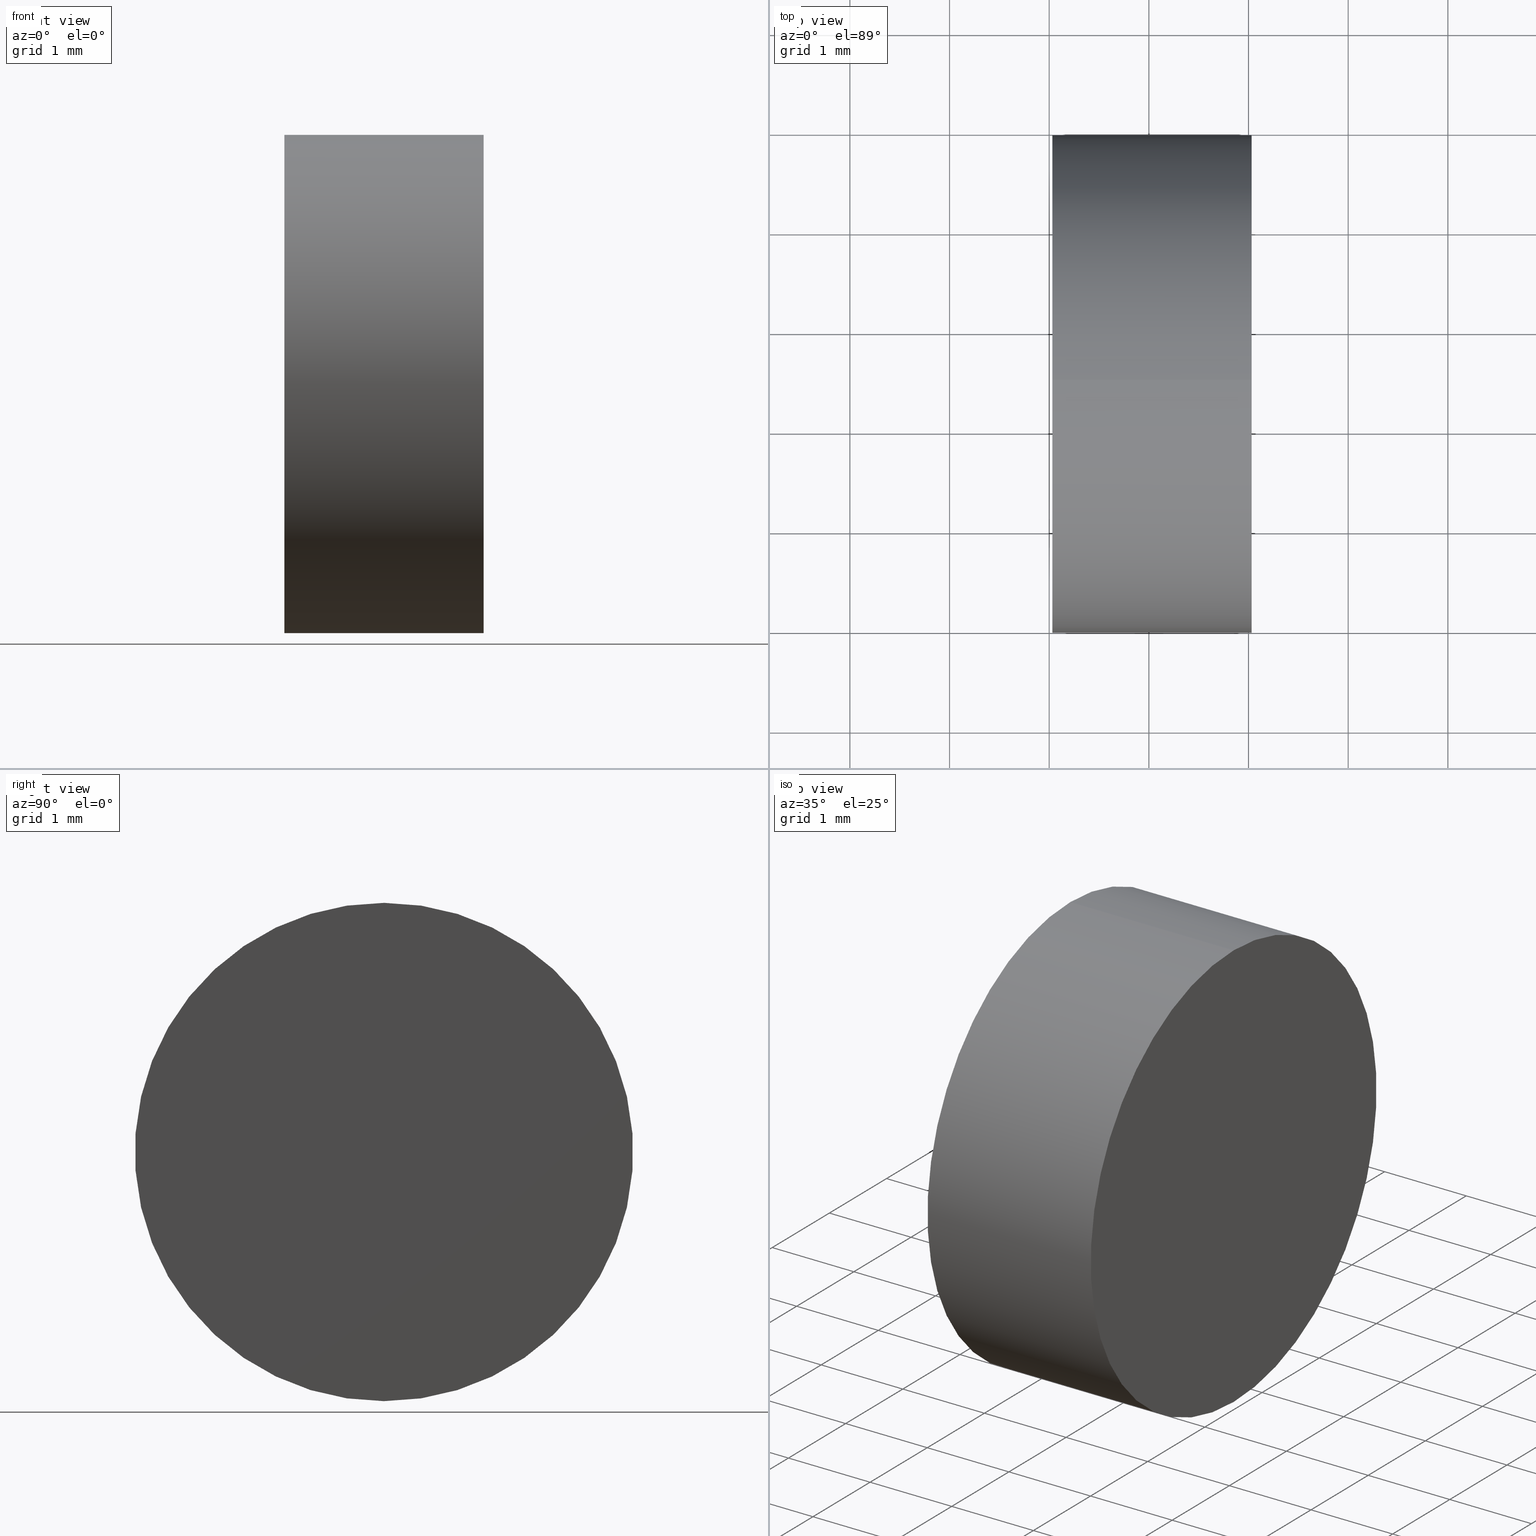
[diagram: canonical four-view strip — front | top / right | iso, engineering-drawing reading convention]
A machine part, canonical four-view strip (front | top / right | iso — engineering-drawing reading convention). The complete STEP part file that produces these views, byte-faithful:
ISO-10303-21;
HEADER;
FILE_DESCRIPTION (( 'STEP AP214' ),
    '1' );
FILE_NAME ('260000.STEP',
    '2019-07-15T02:36:57',
    ( '' ),
    ( '' ),
    'SwSTEP 2.0',
    'SolidWorks 2016',
    '' );
FILE_SCHEMA (( 'AUTOMOTIVE_DESIGN' ));
ENDSEC;

DATA;
#1 = FILL_AREA_STYLE_COLOUR ( '', #108 ) ;
#2 =( NAMED_UNIT ( * ) SI_UNIT ( $, .STERADIAN. ) SOLID_ANGLE_UNIT ( ) );
#3 = PRESENTATION_STYLE_ASSIGNMENT (( #35 ) ) ;
#4 = APPLICATION_CONTEXT ( 'automotive_design' ) ;
#5 = DIRECTION ( 'NONE',  ( -1.000000000000000000, -0.0000000000000000000, -0.0000000000000000000 ) ) ;
#6 = ADVANCED_FACE ( 'NONE', ( #42 ), #102, .T. ) ;
#7 = ORIENTED_EDGE ( 'NONE', *, *, #40, .T. ) ;
#8 = MECHANICAL_DESIGN_GEOMETRIC_PRESENTATION_REPRESENTATION (  '', ( #28 ), #38 ) ;
#9 = EDGE_LOOP ( 'NONE', ( #76, #65, #67, #57 ) ) ;
#10 = UNCERTAINTY_MEASURE_WITH_UNIT (LENGTH_MEASURE( 1.000000000000000100E-005 ), #110, 'distance_accuracy_value', 'NONE');
#11 = DIRECTION ( 'NONE',  ( 1.000000000000000000, 0.0000000000000000000, 0.0000000000000000000 ) ) ;
#12 = DIRECTION ( 'NONE',  ( -1.000000000000000000, -0.0000000000000000000, -0.0000000000000000000 ) ) ;
#13 = APPLICATION_PROTOCOL_DEFINITION ( 'draft international standard', 'automotive_design', 1998, #4 ) ;
#14 = ORIENTED_EDGE ( 'NONE', *, *, #116, .T. ) ;
#15 =( NAMED_UNIT ( * ) SI_UNIT ( $, .STERADIAN. ) SOLID_ANGLE_UNIT ( ) );
#16 = CARTESIAN_POINT ( 'NONE',  ( 52.03142809851220100, 15.45863586980308400, 0.0000000000000000000 ) ) ;
#17 = DIRECTION ( 'NONE',  ( -1.000000000000000000, -0.0000000000000000000, -0.0000000000000000000 ) ) ;
#18 = VECTOR ( 'NONE', #133, 1000.000000000000000 ) ;
#19 = DIRECTION ( 'NONE',  ( -1.000000000000000000, 0.0000000000000000000, -0.0000000000000000000 ) ) ;
#20 = CIRCLE ( 'NONE', #85, 2.499999999999996900 ) ;
#21 = ADVANCED_FACE ( 'NONE', ( #23 ), #72, .T. ) ;
#22 = CARTESIAN_POINT ( 'NONE',  ( 54.03142809851220800, 15.45863586980308400, 0.0000000000000000000 ) ) ;
#23 = FACE_OUTER_BOUND ( 'NONE', #9, .T. ) ;
#24 = DIRECTION ( 'NONE',  ( 0.0000000000000000000, 0.0000000000000000000, -1.000000000000000000 ) ) ;
#25 = VECTOR ( 'NONE', #5, 1000.000000000000000 ) ;
#26 = UNCERTAINTY_MEASURE_WITH_UNIT (LENGTH_MEASURE( 1.000000000000000100E-005 ), #131, 'distance_accuracy_value', 'NONE');
#27 = ORIENTED_EDGE ( 'NONE', *, *, #93, .F. ) ;
#28 = STYLED_ITEM ( 'NONE', ( #3 ), #59 ) ;
#29 = DIRECTION ( 'NONE',  ( -1.000000000000000000, -0.0000000000000000000, -0.0000000000000000000 ) ) ;
#30 = CARTESIAN_POINT ( 'NONE',  ( 50.80016039852321100, 15.45863586980308400, 2.499999999999996900 ) ) ;
#31 = DIRECTION ( 'NONE',  ( 0.0000000000000000000, 0.0000000000000000000, 1.000000000000000000 ) ) ;
#32 = DIRECTION ( 'NONE',  ( 0.0000000000000000000, 0.0000000000000000000, 1.000000000000000000 ) ) ;
#33 = SURFACE_STYLE_USAGE ( .BOTH. , #43 ) ;
#34 = PRODUCT_CONTEXT ( 'NONE', #4, 'mechanical' ) ;
#35 = SURFACE_STYLE_USAGE ( .BOTH. , #88 ) ;
#36 = PRODUCT_DEFINITION ( 'δ֪', '', #115, #79 ) ;
#37 = ORIENTED_EDGE ( 'NONE', *, *, #40, .F. ) ;
#38 =( GEOMETRIC_REPRESENTATION_CONTEXT ( 3 ) GLOBAL_UNCERTAINTY_ASSIGNED_CONTEXT ( ( #26 ) ) GLOBAL_UNIT_ASSIGNED_CONTEXT ( ( #131, #64, #15 ) ) REPRESENTATION_CONTEXT ( 'NONE', 'WORKASPACE' ) );
#39 = VERTEX_POINT ( 'NONE', #94 ) ;
#40 = EDGE_CURVE ( 'NONE', #39, #123, #50, .T. ) ;
#41 = CARTESIAN_POINT ( 'NONE',  ( 50.80016039852321100, 15.45863586980308400, 0.0000000000000000000 ) ) ;
#42 = FACE_OUTER_BOUND ( 'NONE', #104, .T. ) ;
#43 = SURFACE_SIDE_STYLE ('',( #125 ) ) ;
#44 = APPLICATION_CONTEXT ( 'automotive_design' ) ;
#45 = ORIENTED_EDGE ( 'NONE', *, *, #61, .T. ) ;
#46 = FILL_AREA_STYLE ('',( #56 ) ) ;
#47 = SHAPE_DEFINITION_REPRESENTATION ( #99, #59 ) ;
#48 = STYLED_ITEM ( 'NONE', ( #77 ), #86 ) ;
#49 = CARTESIAN_POINT ( 'NONE',  ( 50.80016039852321100, 15.45863586980308400, -2.499999999999996900 ) ) ;
#50 = CIRCLE ( 'NONE', #101, 2.499999999999996900 ) ;
#51 = ORIENTED_EDGE ( 'NONE', *, *, #66, .F. ) ;
#52 = UNCERTAINTY_MEASURE_WITH_UNIT (LENGTH_MEASURE( 1.000000000000000100E-005 ), #120, 'distance_accuracy_value', 'NONE');
#53 = PRESENTATION_LAYER_ASSIGNMENT (  '', '', ( #28 ) ) ;
#54 = CARTESIAN_POINT ( 'NONE',  ( 54.03142809851220800, 15.45863586980308400, 0.0000000000000000000 ) ) ;
#55 =( NAMED_UNIT ( * ) PLANE_ANGLE_UNIT ( ) SI_UNIT ( $, .RADIAN. ) );
#56 = FILL_AREA_STYLE_COLOUR ( '', #111 ) ;
#57 = ORIENTED_EDGE ( 'NONE', *, *, #116, .F. ) ;
#58 = DIRECTION ( 'NONE',  ( 0.0000000000000000000, 0.0000000000000000000, 1.000000000000000000 ) ) ;
#59 = ADVANCED_BREP_SHAPE_REPRESENTATION ( '260000', ( #86, #137 ), #134 ) ;
#60 = EDGE_LOOP ( 'NONE', ( #135, #37 ) ) ;
#61 = EDGE_CURVE ( 'NONE', #121, #91, #20, .T. ) ;
#62 = DIRECTION ( 'NONE',  ( 0.0000000000000000000, 0.0000000000000000000, 1.000000000000000000 ) ) ;
#63 = APPLICATION_PROTOCOL_DEFINITION ( 'draft international standard', 'automotive_design', 1998, #44 ) ;
#64 =( NAMED_UNIT ( * ) PLANE_ANGLE_UNIT ( ) SI_UNIT ( $, .RADIAN. ) );
#65 = ORIENTED_EDGE ( 'NONE', *, *, #66, .T. ) ;
#66 = EDGE_CURVE ( 'NONE', #39, #91, #70, .T. ) ;
#67 = ORIENTED_EDGE ( 'NONE', *, *, #61, .F. ) ;
#68 = PLANE ( 'NONE',  #140 ) ;
#69 = EDGE_CURVE ( 'NONE', #123, #39, #127, .T. ) ;
#70 = LINE ( 'NONE', #49, #18 ) ;
#71 = ADVANCED_FACE ( 'NONE', ( #139 ), #87, .F. ) ;
#72 = CYLINDRICAL_SURFACE ( 'NONE', #113, 2.499999999999996900 ) ;
#73 = FILL_AREA_STYLE ('',( #1 ) ) ;
#74 = DIRECTION ( 'NONE',  ( 0.0000000000000000000, 0.0000000000000000000, 1.000000000000000000 ) ) ;
#75 = CARTESIAN_POINT ( 'NONE',  ( 52.03142809851220100, 15.45863586980308400, 2.499999999999996900 ) ) ;
#76 = ORIENTED_EDGE ( 'NONE', *, *, #69, .T. ) ;
#77 = PRESENTATION_STYLE_ASSIGNMENT (( #33 ) ) ;
#78 = AXIS2_PLACEMENT_3D ( 'NONE', #41, #117, #84 ) ;
#79 = PRODUCT_DEFINITION_CONTEXT ( 'detailed design', #44, 'design' ) ;
#80 = LINE ( 'NONE', #30, #25 ) ;
#81 = CARTESIAN_POINT ( 'NONE',  ( 0.0000000000000000000, 0.0000000000000000000, 0.0000000000000000000 ) ) ;
#82 = DIRECTION ( 'NONE',  ( -1.000000000000000000, -0.0000000000000000000, -0.0000000000000000000 ) ) ;
#83 = ORIENTED_EDGE ( 'NONE', *, *, #93, .T. ) ;
#84 = DIRECTION ( 'NONE',  ( 0.0000000000000000000, 0.0000000000000000000, 1.000000000000000000 ) ) ;
#85 = AXIS2_PLACEMENT_3D ( 'NONE', #16, #17, #100 ) ;
#86 = MANIFOLD_SOLID_BREP ( '��ת1', #126 ) ;
#87 = PLANE ( 'NONE',  #103 ) ;
#88 = SURFACE_SIDE_STYLE ('',( #136 ) ) ;
#89 = FACE_OUTER_BOUND ( 'NONE', #60, .T. ) ;
#90 = PRESENTATION_LAYER_ASSIGNMENT (  '', '', ( #48 ) ) ;
#91 = VERTEX_POINT ( 'NONE', #122 ) ;
#92 = CARTESIAN_POINT ( 'NONE',  ( 52.03142809851220100, 15.45863586980308400, 0.0000000000000000000 ) ) ;
#93 = EDGE_CURVE ( 'NONE', #91, #121, #107, .T. ) ;
#94 = CARTESIAN_POINT ( 'NONE',  ( 54.03142809851220800, 15.45863586980308400, -2.499999999999996900 ) ) ;
#95 = EDGE_LOOP ( 'NONE', ( #45, #83 ) ) ;
#96 = AXIS2_PLACEMENT_3D ( 'NONE', #92, #29, #58 ) ;
#97 = DIRECTION ( 'NONE',  ( -1.000000000000000000, -0.0000000000000000000, -0.0000000000000000000 ) ) ;
#98 = DIRECTION ( 'NONE',  ( -0.0000000000000000000, 0.0000000000000000000, 1.000000000000000000 ) ) ;
#99 = PRODUCT_DEFINITION_SHAPE ( 'NONE', 'NONE',  #36 ) ;
#100 = DIRECTION ( 'NONE',  ( 0.0000000000000000000, 0.0000000000000000000, 1.000000000000000000 ) ) ;
#101 = AXIS2_PLACEMENT_3D ( 'NONE', #22, #97, #32 ) ;
#102 = CYLINDRICAL_SURFACE ( 'NONE', #78, 2.499999999999996900 ) ;
#103 = AXIS2_PLACEMENT_3D ( 'NONE', #129, #11, #24 ) ;
#104 = EDGE_LOOP ( 'NONE', ( #51, #7, #14, #27 ) ) ;
#105 = ADVANCED_FACE ( 'NONE', ( #89 ), #68, .F. ) ;
#106 = CARTESIAN_POINT ( 'NONE',  ( 50.80016039852321100, 15.45863586980308400, 0.0000000000000000000 ) ) ;
#107 = CIRCLE ( 'NONE', #96, 2.499999999999996900 ) ;
#108 = COLOUR_RGB ( '',1.000000000000000000, 1.000000000000000000, 1.000000000000000000 ) ;
#109 = AXIS2_PLACEMENT_3D ( 'NONE', #54, #12, #62 ) ;
#110 =( LENGTH_UNIT ( ) NAMED_UNIT ( * ) SI_UNIT ( .MILLI., .METRE. ) );
#111 = COLOUR_RGB ( '',1.000000000000000000, 1.000000000000000000, 1.000000000000000000 ) ;
#112 = CARTESIAN_POINT ( 'NONE',  ( 54.03142809851220800, 15.45863586980308400, 2.499999999999996900 ) ) ;
#113 = AXIS2_PLACEMENT_3D ( 'NONE', #106, #82, #31 ) ;
#114 = MECHANICAL_DESIGN_GEOMETRIC_PRESENTATION_REPRESENTATION (  '', ( #48 ), #124 ) ;
#115 = PRODUCT_DEFINITION_FORMATION_WITH_SPECIFIED_SOURCE ( '�κ�', '', #119, .NOT_KNOWN. ) ;
#116 = EDGE_CURVE ( 'NONE', #123, #121, #80, .T. ) ;
#117 = DIRECTION ( 'NONE',  ( -1.000000000000000000, -0.0000000000000000000, -0.0000000000000000000 ) ) ;
#118 =( NAMED_UNIT ( * ) PLANE_ANGLE_UNIT ( ) SI_UNIT ( $, .RADIAN. ) );
#119 = PRODUCT ( '260000', '260000', '', ( #34 ) ) ;
#120 =( LENGTH_UNIT ( ) NAMED_UNIT ( * ) SI_UNIT ( .MILLI., .METRE. ) );
#121 = VERTEX_POINT ( 'NONE', #75 ) ;
#122 = CARTESIAN_POINT ( 'NONE',  ( 52.03142809851220100, 15.45863586980308400, -2.499999999999996900 ) ) ;
#123 = VERTEX_POINT ( 'NONE', #112 ) ;
#124 =( GEOMETRIC_REPRESENTATION_CONTEXT ( 3 ) GLOBAL_UNCERTAINTY_ASSIGNED_CONTEXT ( ( #10 ) ) GLOBAL_UNIT_ASSIGNED_CONTEXT ( ( #110, #118, #2 ) ) REPRESENTATION_CONTEXT ( 'NONE', 'WORKASPACE' ) );
#125 = SURFACE_STYLE_FILL_AREA ( #73 ) ;
#126 = CLOSED_SHELL ( 'NONE', ( #21, #105, #71, #6 ) ) ;
#127 = CIRCLE ( 'NONE', #109, 2.499999999999996900 ) ;
#128 = DIRECTION ( 'NONE',  ( 1.000000000000000000, 0.0000000000000000000, 0.0000000000000000000 ) ) ;
#129 = CARTESIAN_POINT ( 'NONE',  ( 52.03142809851220100, 15.45863586980308200, 0.0000000000000000000 ) ) ;
#130 =( NAMED_UNIT ( * ) SI_UNIT ( $, .STERADIAN. ) SOLID_ANGLE_UNIT ( ) );
#131 =( LENGTH_UNIT ( ) NAMED_UNIT ( * ) SI_UNIT ( .MILLI., .METRE. ) );
#132 = PRODUCT_RELATED_PRODUCT_CATEGORY ( 'part', '', ( #119 ) ) ;
#133 = DIRECTION ( 'NONE',  ( -1.000000000000000000, -0.0000000000000000000, -0.0000000000000000000 ) ) ;
#134 =( GEOMETRIC_REPRESENTATION_CONTEXT ( 3 ) GLOBAL_UNCERTAINTY_ASSIGNED_CONTEXT ( ( #52 ) ) GLOBAL_UNIT_ASSIGNED_CONTEXT ( ( #120, #55, #130 ) ) REPRESENTATION_CONTEXT ( 'NONE', 'WORKASPACE' ) );
#135 = ORIENTED_EDGE ( 'NONE', *, *, #69, .F. ) ;
#136 = SURFACE_STYLE_FILL_AREA ( #46 ) ;
#137 = AXIS2_PLACEMENT_3D ( 'NONE', #81, #74, #128 ) ;
#138 = CARTESIAN_POINT ( 'NONE',  ( 54.03142809851220800, 17.95863586980308200, 0.0000000000000000000 ) ) ;
#139 = FACE_OUTER_BOUND ( 'NONE', #95, .T. ) ;
#140 = AXIS2_PLACEMENT_3D ( 'NONE', #138, #19, #98 ) ;
ENDSEC;
END-ISO-10303-21;
